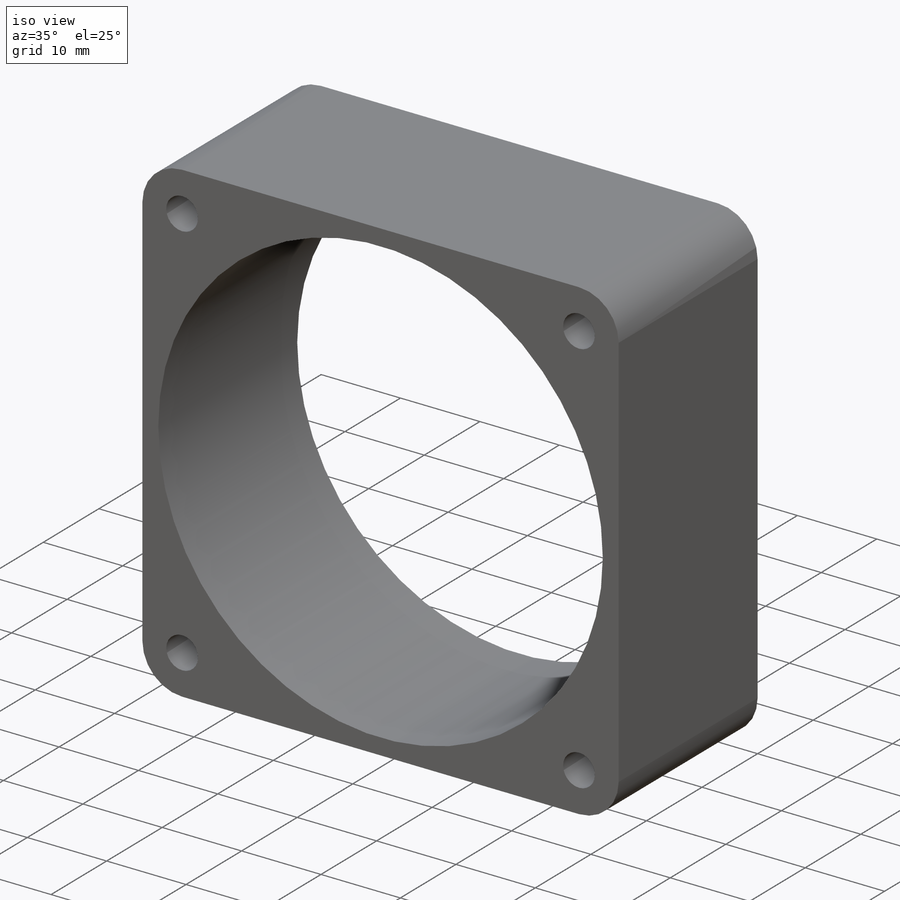
[diagram: iso view]
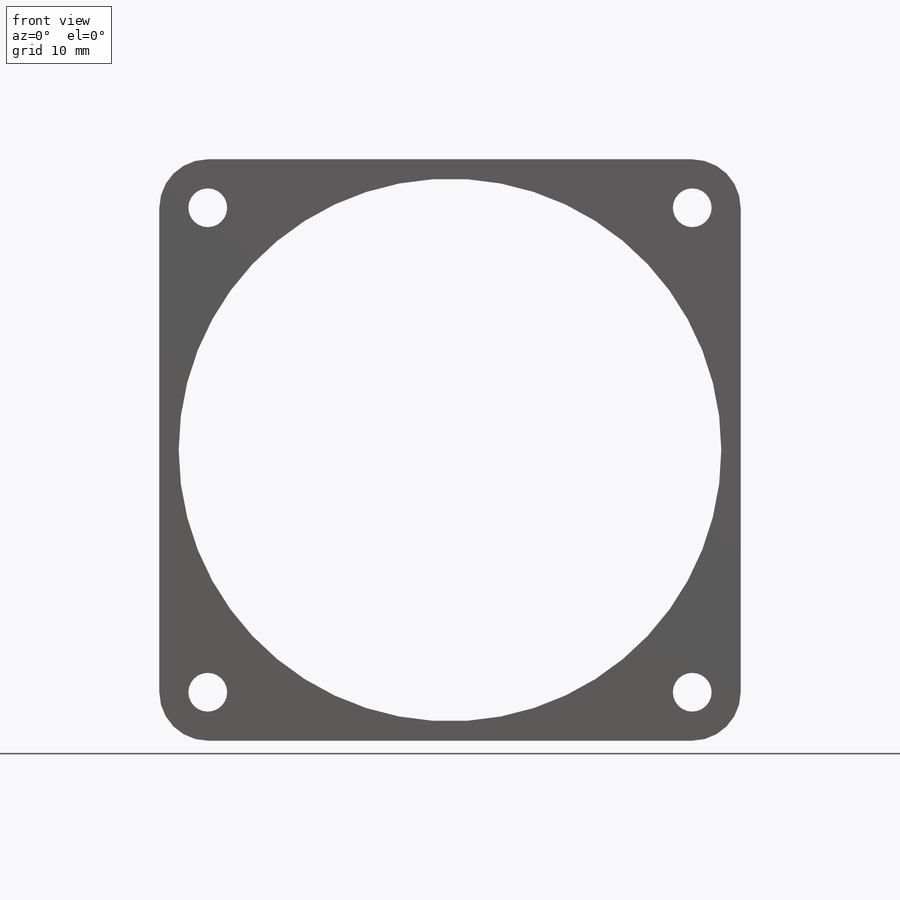
[diagram: front view]
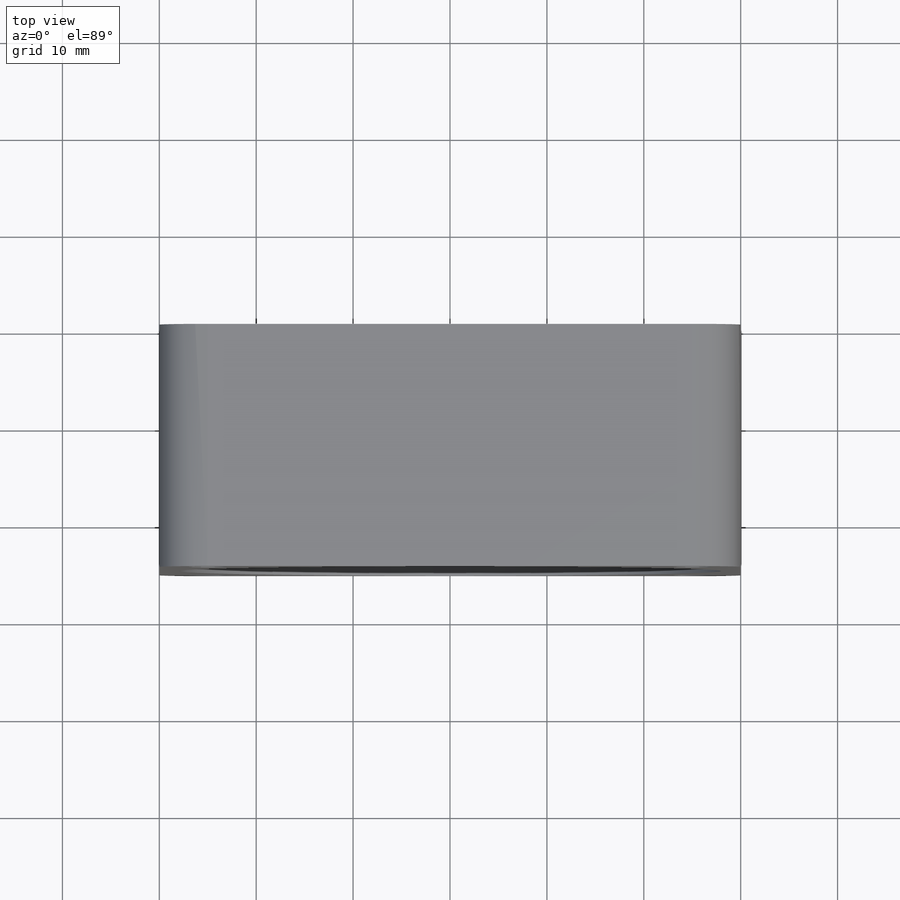
[diagram: top view]
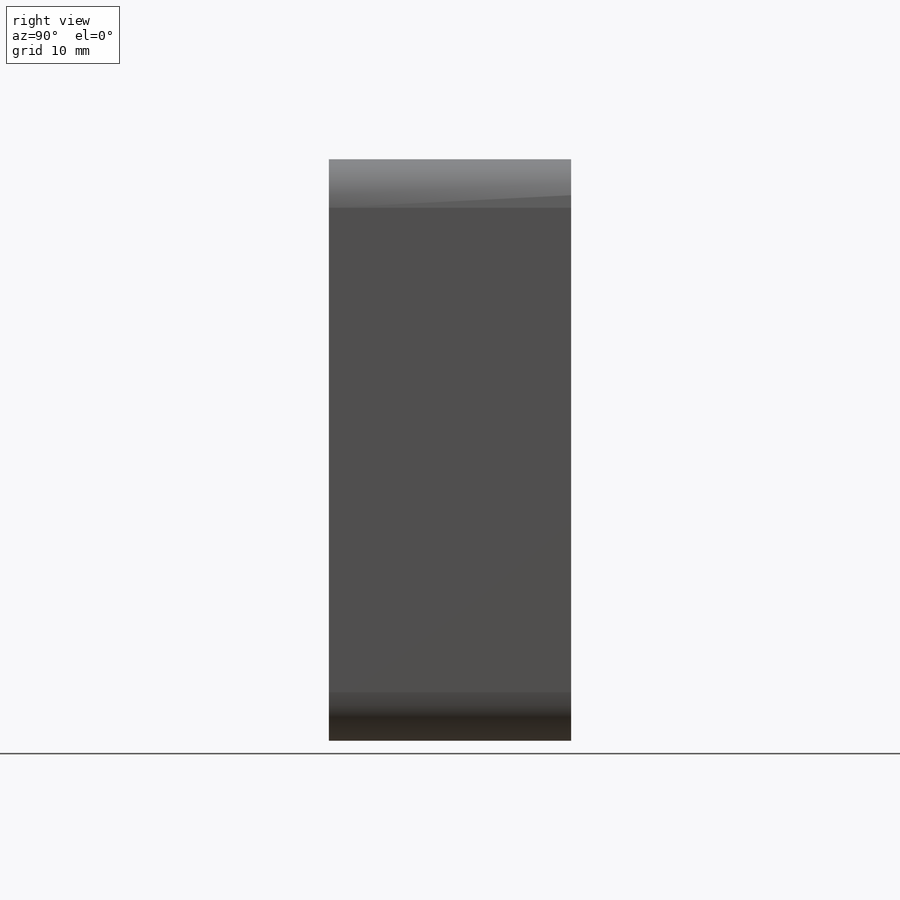
[diagram: right view]
SOLIDWORKS PART (.sldprt)
format: sldprt  version: not decoded by parser v0  size: 193,024 bytes
history: native  units: mm
features: plane x3, sketch x3, cut_extrude x2, fillet x2, material x1, extrude x1 (+9 scaffold rows collapsed)
feature tree (21):
  scaffold x9  (default folders/planes/origin — collapsed)
  material  "Matériau <non spécifié>"
  plane  "Plan de face"
  plane  "Plan de dessus"
  plane  "Plan de droite"
  sketch  "Esquisse1"  dims[c1.D1=60.0mm c1.D2=~65.397095mm c2.D2=90.0deg c3.D2=60.0mm]
  extrude  "Boss.-Extru.1"  Depth=25mm
  sketch  "Esquisse2"  dims[D1=56.0mm]
  cut_extrude  "Enlèv. mat.-Extru.1"  [1 undecoded]
  sketch  "Esquisse3"  dims[D1=4.0mm D2=5.0mm D3=5.0mm D4=5.0mm D5=5.0mm D6=5.0mm]
  cut_extrude  "Enlèv. mat.-Extru.2"  Depth=25mm
  fillet  "Congé1"  Radius=5mm
  fillet  "Axe2"  [1 undecoded]
decode coverage: 6 of 8 modeling features carry decoded parameters
note: ~ marks probable driven/reference dimensions
note: 2 parameter values undecoded
note: suppression state not decoded; provenance and decode notes live in map.json
